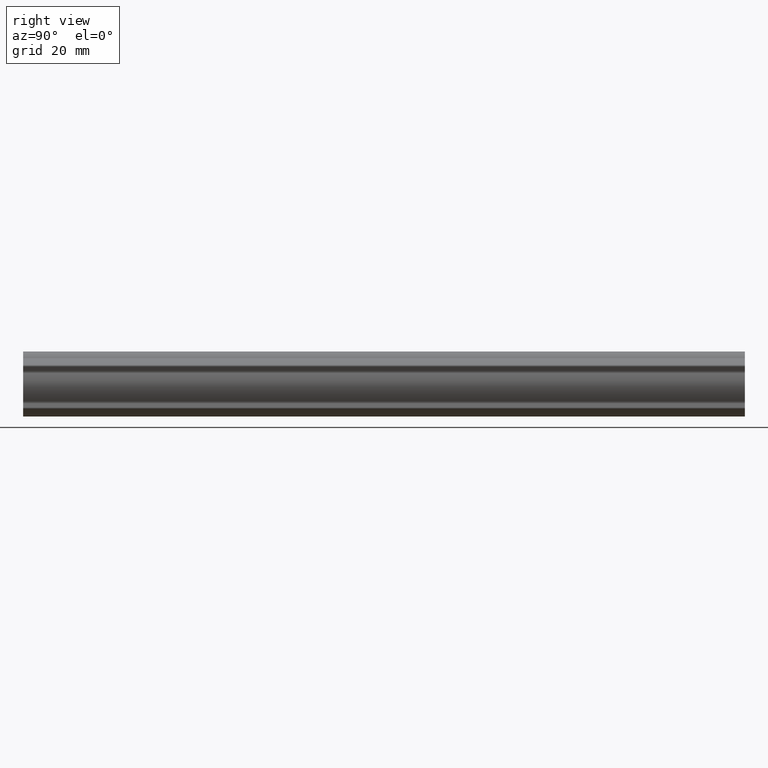
[diagram: clean part render]
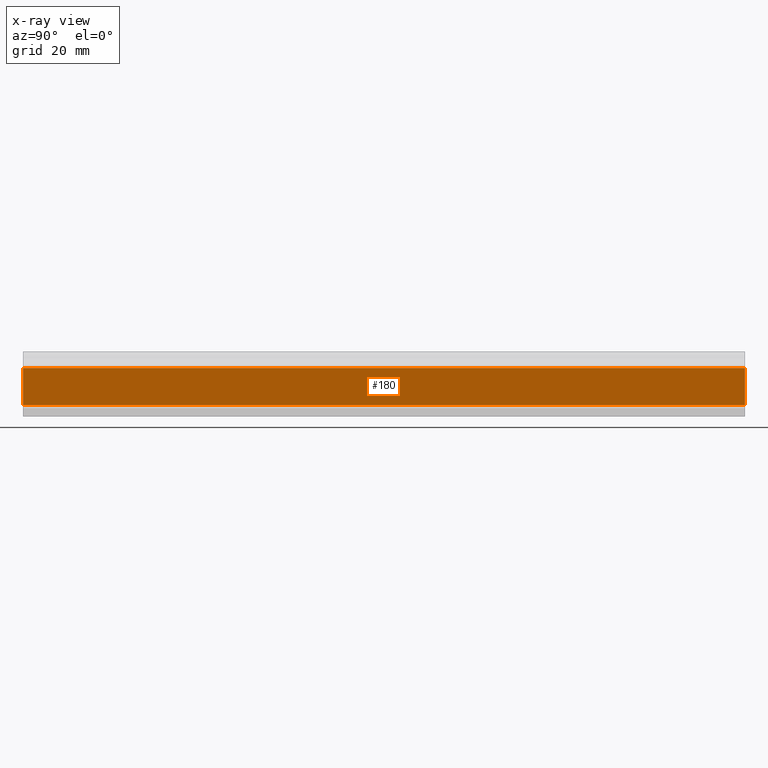
[diagram: x-ray — body ghosted, one internal face saturated and labeled with its STEP entity id]
A machine part, right view, then the same camera in x-ray: the body is ghosted and one INTERNAL B-rep face — a face not visible from any outside direction — is saturated and labeled: STEP entity #180.
In plain terms, the highlighted planar face has unit normal (1, 0, 0).
Its self-contained STEP definition (entity closure, byte-faithful):
#180=ADVANCED_FACE('',(#551),#550,.F.);
#550=PLANE('',#1310);
#551=FACE_OUTER_BOUND('',#1311,.T.);
#1307=CARTESIAN_POINT('',(5.41900000000E+00,-1.00000000000E+01,1.44286669530E+01));
#1308=DIRECTION('',(1.00000000000E+00,0.00000000000E+00,0.00000000000E+00));
#1309=DIRECTION('',(0.00000000000E+00,0.00000000000E+00,-1.00000000000E+00));
#1310=AXIS2_PLACEMENT_3D('',#1307,#1308,#1309);
#1311=EDGE_LOOP('',(#1783,#1784,#1785,#1786));
#1783=ORIENTED_EDGE('',*,*,#2206,.T.);
#1784=ORIENTED_EDGE('',*,*,#2207,.F.);
#1785=ORIENTED_EDGE('',*,*,#2208,.F.);
#1786=ORIENTED_EDGE('',*,*,#2209,.T.);
#2206=EDGE_CURVE('',#2954,#2955,#2956,.T.);
#2207=EDGE_CURVE('',#2962,#2955,#2963,.T.);
#2208=EDGE_CURVE('',#2969,#2962,#2970,.T.);
#2209=EDGE_CURVE('',#2969,#2954,#2976,.T.);
#2954=VERTEX_POINT('',#4423);
#2955=VERTEX_POINT('',#4424);
#2956=LINE('',#4425,#4426);
#2962=VERTEX_POINT('',#4428);
#2963=LINE('',#4429,#4430);
#2969=VERTEX_POINT('',#4432);
#2970=LINE('',#4433,#4434);
#2976=LINE('',#4436,#4437);
#4423=CARTESIAN_POINT('',(5.41900000000E+00,0.00000000000E+00,3.14376695297E+00));
#4424=CARTESIAN_POINT('',(5.41900000000E+00,0.00000000000E+00,1.34027669530E+01));
#4425=CARTESIAN_POINT('',(5.41900000000E+00,0.00000000000E+00,3.14376695297E+00));
#4426=VECTOR('',#4427,1.02590000000E+01);
#4427=DIRECTION('',(0.00000000000E+00,0.00000000000E+00,1.00000000000E+00));
#4428=CARTESIAN_POINT('',(5.41900000000E+00,2.00000000000E+02,1.34027669530E+01));
#4429=CARTESIAN_POINT('',(5.41900000000E+00,2.00000000000E+02,1.34027669530E+01));
#4430=VECTOR('',#4431,2.00000000000E+02);
#4431=DIRECTION('',(0.00000000000E+00,-1.00000000000E+00,0.00000000000E+00));
#4432=CARTESIAN_POINT('',(5.41900000000E+00,2.00000000000E+02,3.14376695297E+00));
#4433=CARTESIAN_POINT('',(5.41900000000E+00,2.00000000000E+02,3.14376695297E+00));
#4434=VECTOR('',#4435,1.02590000000E+01);
#4435=DIRECTION('',(0.00000000000E+00,0.00000000000E+00,1.00000000000E+00));
#4436=CARTESIAN_POINT('',(5.41900000000E+00,2.00000000000E+02,3.14376695297E+00));
#4437=VECTOR('',#4438,2.00000000000E+02);
#4438=DIRECTION('',(0.00000000000E+00,-1.00000000000E+00,0.00000000000E+00));